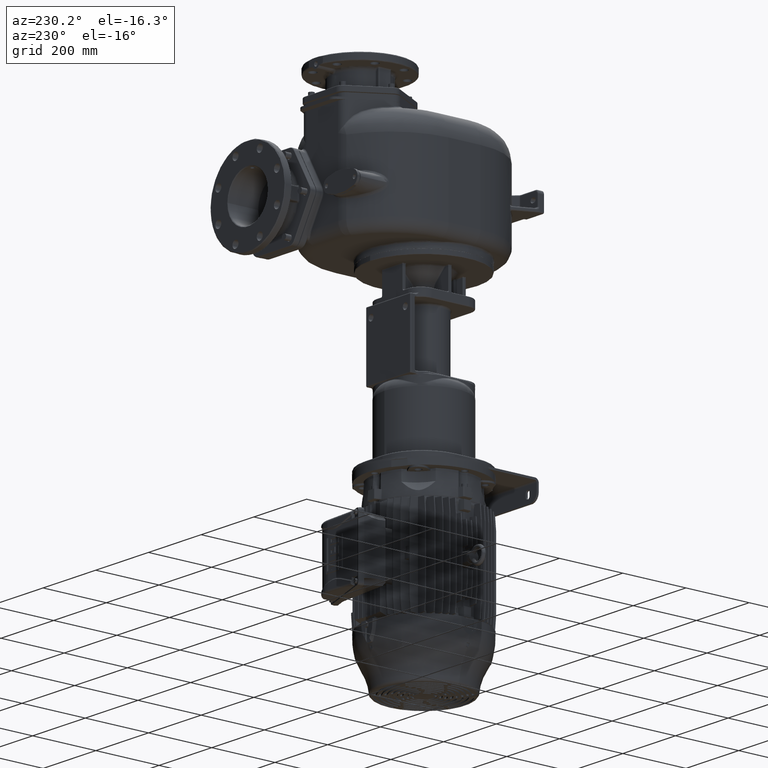
[diagram: clean part render]
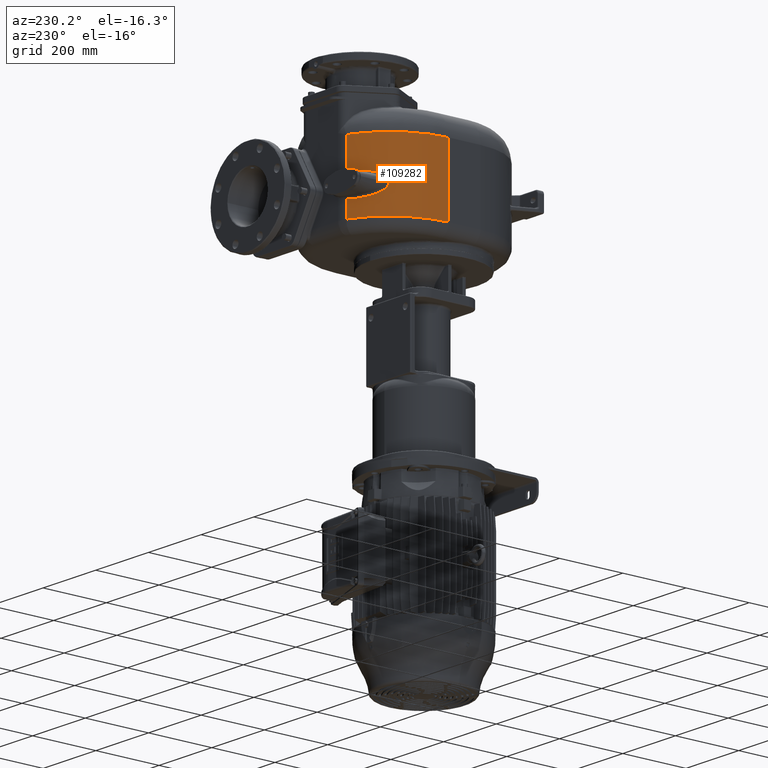
[diagram: same view with one face highlighted and labeled with its STEP entity id]
A machine part, auxiliary view. The second image highlights one B-rep face of the part: STEP entity #109282.
In plain terms, the highlighted cylindrical surface (partial cylindrical patch) has radius 225 mm, axis along (0, 0, -1).
Its self-contained STEP definition (entity closure, byte-faithful):
#42627=CARTESIAN_POINT('',(-5.971814680035E1,5.240322073841E2,
-6.899364550006E1));
#42628=CARTESIAN_POINT('',(-6.042305277968E1,5.237417563989E2,
-6.910556410112E1));
#42629=CARTESIAN_POINT('',(-6.183954877913E1,5.231497205425E2,
-6.931899494135E1));
#42630=CARTESIAN_POINT('',(-6.398491669796E1,5.222269532989E2,
-6.960766591294E1));
#42631=CARTESIAN_POINT('',(-6.614699154209E1,5.212701071367E2,
-6.986408248457E1));
#42632=CARTESIAN_POINT('',(-6.832307667289E1,5.202794230223E2,
-7.008774370844E1));
#42633=CARTESIAN_POINT('',(-7.051023715728E1,5.192553476121E2,
-7.027804041893E1));
#42634=CARTESIAN_POINT('',(-7.270567330587E1,5.181983805242E2,
-7.043459241108E1));
#42635=CARTESIAN_POINT('',(-7.490620386723E1,5.171093260205E2,
-7.055697237340E1));
#42636=CARTESIAN_POINT('',(-7.710843706270E1,5.159892393368E2,
-7.064478985300E1));
#42637=CARTESIAN_POINT('',(-7.930902425367E1,5.148393145998E2,
-7.069787047004E1));
#42638=CARTESIAN_POINT('',(-8.150527877580E1,5.136605491825E2,
-7.071600238156E1));
#42639=CARTESIAN_POINT('',(-8.369463537247E1,5.124540012447E2,
-7.069908209575E1));
#42640=CARTESIAN_POINT('',(-8.587453124720E1,5.112208558357E2,
-7.064709811396E1));
#42641=CARTESIAN_POINT('',(-8.804233530110E1,5.099624714047E2,
-7.055997420122E1));
#42642=CARTESIAN_POINT('',(-9.019551163210E1,5.086802908838E2,
-7.043780439869E1));
#42643=CARTESIAN_POINT('',(-9.233149017194E1,5.073759180824E2,
-7.028069324470E1));
#42644=CARTESIAN_POINT('',(-9.444766474668E1,5.060511278778E2,
-7.008875910473E1));
#42645=CARTESIAN_POINT('',(-9.654156534288E1,5.047077601825E2,
-6.986230621632E1));
#42646=CARTESIAN_POINT('',(-9.861057344234E1,5.033479030852E2,
-6.960158375799E1));
#42647=CARTESIAN_POINT('',(-1.006521327558E2,5.019737672960E2,
-6.930696575349E1));
#42648=CARTESIAN_POINT('',(-1.026637771644E2,5.005876628210E2,
-6.897897682443E1));
#42649=CARTESIAN_POINT('',(-1.046428202351E2,4.991922189115E2,
-6.861810296413E1));
#42650=CARTESIAN_POINT('',(-1.065867522723E2,4.977901167054E2,
-6.822507701739E1));
#42651=CARTESIAN_POINT('',(-1.084931253106E2,4.963841610293E2,
-6.780068405467E1));
#42652=CARTESIAN_POINT('',(-1.103595147950E2,4.949773098291E2,
-6.734572115936E1));
#42653=CARTESIAN_POINT('',(-1.121837491960E2,4.935724922492E2,
-6.686127427007E1));
#42654=CARTESIAN_POINT('',(-1.139632992381E2,4.921730744192E2,
-6.634847145673E1));
#42655=CARTESIAN_POINT('',(-1.156956472746E2,4.907825938478E2,
-6.580868361418E1));
#42656=CARTESIAN_POINT('',(-1.173785084939E2,4.894045695705E2,
-6.524358587556E1));
#42657=CARTESIAN_POINT('',(-1.190093646424E2,4.880428760293E2,
-6.465477188082E1));
#42658=CARTESIAN_POINT('',(-1.205859446079E2,4.867013472062E2,
-6.404428532548E1));
#42659=CARTESIAN_POINT('',(-1.221061676496E2,4.853837990753E2,
-6.341432226742E1));
#42660=CARTESIAN_POINT('',(-1.235681692598E2,4.840939853054E2,
-6.276692589563E1));
#42661=CARTESIAN_POINT('',(-1.249702499172E2,4.828356207921E2,
-6.210483338080E1));
#42662=CARTESIAN_POINT('',(-1.263114056721E2,4.816118727661E2,
-6.143033930703E1));
#42663=CARTESIAN_POINT('',(-1.275912274696E2,4.804253885862E2,
-6.074559106133E1));
#42664=CARTESIAN_POINT('',(-1.288093659545E2,4.792787575232E2,
-6.005339079748E1));
#42665=CARTESIAN_POINT('',(-1.299664942392E2,4.781735719029E2,
-5.935553055208E1));
#42666=CARTESIAN_POINT('',(-1.310635820770E2,4.771110541399E2,
-5.865406899802E1));
#42667=CARTESIAN_POINT('',(-1.321017301892E2,4.760922024885E2,
-5.795121341059E1));
#42668=CARTESIAN_POINT('',(-1.330824051131E2,4.751175442023E2,
-5.724838595907E1));
#42669=CARTESIAN_POINT('',(-1.340071983518E2,4.741873555518E2,
-5.654760558553E1));
#42670=CARTESIAN_POINT('',(-1.348779499763E2,4.733015301015E2,
-5.585039935258E1));
#42671=CARTESIAN_POINT('',(-1.356968454928E2,4.724594654344E2,
-5.515771348887E1));
#42672=CARTESIAN_POINT('',(-1.364661838884E2,4.716602896595E2,
-5.447095534224E1));
#42673=CARTESIAN_POINT('',(-1.371881020480E2,4.709031528510E2,
-5.379090263402E1));
#42674=CARTESIAN_POINT('',(-1.378648265700E2,4.701869739840E2,
-5.311839523041E1));
#42675=CARTESIAN_POINT('',(-1.384986795279E2,4.695104343789E2,
-5.245439745948E1));
#42676=CARTESIAN_POINT('',(-1.390916804045E2,4.688724117766E2,
-5.179923634447E1));
#42677=CARTESIAN_POINT('',(-1.396460629202E2,4.682714375064E2,
-5.115354229718E1));
#42678=CARTESIAN_POINT('',(-1.401639861847E2,4.677060089154E2,
-5.051770831384E1));
#42679=CARTESIAN_POINT('',(-1.406474217E2,4.671747258942E2,-4.989170166709E1));
#42680=CARTESIAN_POINT('',(-1.410985893110E2,4.666758190760E2,
-4.927571458731E1));
#42681=CARTESIAN_POINT('',(-1.415193461348E2,4.662078291700E2,
-4.866963300748E1));
#42682=CARTESIAN_POINT('',(-1.419114348487E2,4.657693483901E2,
-4.807334065294E1));
#42683=CARTESIAN_POINT('',(-1.422767796931E2,4.653586935106E2,
-4.748674570540E1));
#42684=CARTESIAN_POINT('',(-1.426168303991E2,4.649746495403E2,
-4.690956652676E1));
#42685=CARTESIAN_POINT('',(-1.429331399503E2,4.646158310687E2,
-4.634159028743E1));
#42686=CARTESIAN_POINT('',(-1.432272414176E2,4.642808225764E2,
-4.578251038441E1));
#42687=CARTESIAN_POINT('',(-1.435002805427E2,4.639686052751E2,
-4.523202590359E1));
#42688=CARTESIAN_POINT('',(-1.437535910780E2,4.636779072491E2,
-4.468980834029E1));
#42689=CARTESIAN_POINT('',(-1.439883119396E2,4.634076434252E2,
-4.415548094926E1));
#42690=CARTESIAN_POINT('',(-1.442053894545E2,4.631569206244E2,
-4.362873819687E1));
#42691=CARTESIAN_POINT('',(-1.444059020761E2,4.629246660121E2,
-4.310914548883E1));
#42692=CARTESIAN_POINT('',(-1.445906828379E2,4.627100661600E2,
-4.259635218449E1));
#42693=CARTESIAN_POINT('',(-1.447605216654E2,4.625123374146E2,
-4.209000195398E1));
#42694=CARTESIAN_POINT('',(-1.449162322683E2,4.623306495200E2,
-4.158960637235E1));
#42695=CARTESIAN_POINT('',(-1.450584459308E2,4.621643684180E2,
-4.109486933892E1));
#42696=CARTESIAN_POINT('',(-1.451877863896E2,4.620128548024E2,
-4.060535395175E1));
#42697=CARTESIAN_POINT('',(-1.453048336171E2,4.618755076941E2,
-4.012062075694E1));
#42698=CARTESIAN_POINT('',(-1.454100774619E2,4.617518205388E2,
-3.964038738001E1));
#42699=CARTESIAN_POINT('',(-1.455039530685E2,4.616413412300E2,
-3.916417730886E1));
#42700=CARTESIAN_POINT('',(-1.455868941437E2,4.615436104418E2,
-3.869164471561E1));
#42701=CARTESIAN_POINT('',(-1.456592482662E2,4.614582622875E2,
-3.822239359877E1));
#42702=CARTESIAN_POINT('',(-1.457213067432E2,4.613849902623E2,
-3.775595615399E1));
#42703=CARTESIAN_POINT('',(-1.457733832754E2,4.613234549601E2,
-3.729199690824E1));
#42704=CARTESIAN_POINT('',(-1.458156382187E2,4.612734923122E2,
-3.683000727203E1));
#42705=CARTESIAN_POINT('',(-1.458482969796E2,4.612348561669E2,
-3.636987504960E1));
#42706=CARTESIAN_POINT('',(-1.458714807470E2,4.612074183094E2,
-3.591154873357E1));
#42707=CARTESIAN_POINT('',(-1.458852859812E2,4.611910763455E2,
-3.545492152912E1));
#42708=CARTESIAN_POINT('',(-1.458883432064E2,4.611874553363E2,
-3.515147016166E1));
#42709=CARTESIAN_POINT('',(-1.458883424113E2,4.611874572513E2,-3.5E1));
#42711=CARTESIAN_POINT('',(-1.458883424113E2,4.611874572513E2,-3.5E1));
#42712=CARTESIAN_POINT('',(-1.458883432013E2,4.611874553533E2,
-3.484846667092E1));
#42713=CARTESIAN_POINT('',(-1.458852841350E2,4.611910785263E2,
-3.454488757691E1));
#42714=CARTESIAN_POINT('',(-1.458714703936E2,4.612074305664E2,
-3.408806615107E1));
#42715=CARTESIAN_POINT('',(-1.458482723897E2,4.612348852650E2,
-3.362953835144E1));
#42716=CARTESIAN_POINT('',(-1.458155926093E2,4.612735462597E2,
-3.316919549644E1));
#42717=CARTESIAN_POINT('',(-1.457733097846E2,4.613235418348E2,
-3.270698455829E1));
#42718=CARTESIAN_POINT('',(-1.457211977624E2,4.613851189971E2,
-3.224279258191E1));
#42719=CARTESIAN_POINT('',(-1.456590954233E2,4.614584426789E2,
-3.177611040515E1));
#42720=CARTESIAN_POINT('',(-1.455866886383E2,4.615438527439E2,
-3.130660203049E1));
#42721=CARTESIAN_POINT('',(-1.455036851545E2,4.616416567514E2,
-3.083379852235E1));
#42722=CARTESIAN_POINT('',(-1.454097363222E2,4.617522217745E2,
-3.035730287483E1));
#42723=CARTESIAN_POINT('',(-1.453044076560E2,4.618760079628E2,
-2.987676764211E1));
#42724=CARTESIAN_POINT('',(-1.451872628059E2,4.620134687271E2,
-2.939171592131E1));
#42725=CARTESIAN_POINT('',(-1.450578110813E2,4.621651114754E2,
-2.890186523603E1));
#42726=CARTESIAN_POINT('',(-1.449154711153E2,4.623315386596E2,
-2.840677479663E1));
#42727=CARTESIAN_POINT('',(-1.447596174893E2,4.625133913589E2,
-2.790600655872E1));
#42728=CARTESIAN_POINT('',(-1.445896178897E2,4.627113046046E2,
-2.739926393716E1));
#42729=CARTESIAN_POINT('',(-1.444046571939E2,4.629261100295E2,
-2.688605878659E1));
#42730=CARTESIAN_POINT('',(-1.442039438104E2,4.631585929070E2,
-2.636603446591E1));
#42731=CARTESIAN_POINT('',(-1.439866436653E2,4.634095675071E2,
-2.583884074175E1));
#42732=CARTESIAN_POINT('',(-1.437516770865E2,4.636801076497E2,
-2.530404440970E1));
#42733=CARTESIAN_POINT('',(-1.434980968090E2,4.639711071181E2,
-2.476134145821E1));
#42734=CARTESIAN_POINT('',(-1.432247625399E2,4.642836520214E2,
-2.421035540101E1));
#42735=CARTESIAN_POINT('',(-1.429303386808E2,4.646190157581E2,
-2.365075735304E1));
#42736=CARTESIAN_POINT('',(-1.426136772273E2,4.649782189790E2,
-2.308224578792E1));
#42737=CARTESIAN_POINT('',(-1.422732465439E2,4.653626747654E2,
-2.250452137059E1));
#42738=CARTESIAN_POINT('',(-1.419074973767E2,4.657737634737E2,
-2.191737980036E1));
#42739=CARTESIAN_POINT('',(-1.415149811314E2,4.662126979643E2,
-2.132054357905E1));
#42740=CARTESIAN_POINT('',(-1.410937655561E2,4.666811694179E2,
-2.071390936449E1));
#42741=CARTESIAN_POINT('',(-1.406420944946E2,4.671805992862E2,
-2.009734399904E1));
#42742=CARTESIAN_POINT('',(-1.401581199981E2,4.677124351866E2,
-1.947075591153E1));
#42743=CARTESIAN_POINT('',(-1.396396647955E2,4.682783985366E2,
-1.883439613110E1));
#42744=CARTESIAN_POINT('',(-1.390848147611E2,4.688798269907E2,
-1.818829018121E1));
#42745=CARTESIAN_POINT('',(-1.384913690147E2,4.695182690362E2,
-1.753276840943E1));
#42746=CARTESIAN_POINT('',(-1.378570076879E2,4.701952848080E2,
-1.686836778425E1));
#42747=CARTESIAN_POINT('',(-1.371796195991E2,4.709120908620E2,
-1.619535513712E1));
#42748=CARTESIAN_POINT('',(-1.364567279703E2,4.716701622082E2,
-1.551455106206E1));
#42749=CARTESIAN_POINT('',(-1.356859307828E2,4.724707506566E2,
-1.482664416608E1));
#42750=CARTESIAN_POINT('',(-1.348649669989E2,4.733148155574E2,
-1.413234596831E1));
#42751=CARTESIAN_POINT('',(-1.339915730277E2,4.742031698884E2,
-1.343316599943E1));
#42752=CARTESIAN_POINT('',(-1.330635950802E2,4.751363612007E2,
-1.273010093438E1));
#42753=CARTESIAN_POINT('',(-1.320791994376E2,4.761144659440E2,
-1.202471162034E1));
#42754=CARTESIAN_POINT('',(-1.310367778250E2,4.771371997230E2,
-1.131903626167E1));
#42755=CARTESIAN_POINT('',(-1.299348243232E2,4.782040453884E2,
-1.061448919726E1));
#42756=CARTESIAN_POINT('',(-1.287725796846E2,4.793136501682E2,
-9.913538536598E0));
#42757=CARTESIAN_POINT('',(-1.275495060569E2,4.804643718410E2,
-9.218487652167E0));
#42758=CARTESIAN_POINT('',(-1.262653355302E2,4.816542491904E2,
-8.531299824005E0));
#42759=CARTESIAN_POINT('',(-1.249204828444E2,4.828806564472E2,
-7.854774933546E0));
#42760=CARTESIAN_POINT('',(-1.235154926988E2,4.841408523010E2,
-7.191108087707E0));
#42761=CARTESIAN_POINT('',(-1.220513003924E2,4.854317662169E2,
-6.542529322059E0));
#42762=CARTESIAN_POINT('',(-1.205292527719E2,4.867500206935E2,
-5.911556771379E0));
#42763=CARTESIAN_POINT('',(-1.189508604294E2,4.880921778536E2,
-5.300085736539E0));
#42764=CARTESIAN_POINT('',(-1.173180318113E2,4.894545651664E2,
-4.710257104838E0));
#42765=CARTESIAN_POINT('',(-1.156329466106E2,4.908334167468E2,
-4.144084770510E0));
#42766=CARTESIAN_POINT('',(-1.138980012442E2,4.922249437685E2,
-3.603139385266E0));
#42767=CARTESIAN_POINT('',(-1.121155831920E2,4.936255300312E2,
-3.089137184666E0));
#42768=CARTESIAN_POINT('',(-1.102883098017E2,4.950315509467E2,
-2.603465096541E0));
#42769=CARTESIAN_POINT('',(-1.084188628699E2,4.964395198047E2,
-2.147287120181E0));
#42770=CARTESIAN_POINT('',(-1.065097081088E2,4.978462934807E2,
-1.721774331886E0));
#42771=CARTESIAN_POINT('',(-1.045635987766E2,4.992486960849E2,
-1.327782048032E0));
#42772=CARTESIAN_POINT('',(-1.025830974545E2,5.006438757843E2,
-9.660985066812E-1));
#42773=CARTESIAN_POINT('',(-1.005706761515E2,5.020292139991E2,
-6.374301454907E-1));
#42774=CARTESIAN_POINT('',(-9.852901479767E1,5.034021201943E2,
-3.422499224981E-1));
#42775=CARTESIAN_POINT('',(-9.646055145447E1,5.047603360971E2,
-8.106798418868E-2));
#42776=CARTESIAN_POINT('',(-9.436781978787E1,5.061016967714E2,
1.457533465439E-1));
#42777=CARTESIAN_POINT('',(-9.225339867738E1,5.074241684748E2,
3.379739515674E-1));
#42778=CARTESIAN_POINT('',(-9.011968236773E1,5.087259841199E2,
4.953092707724E-1));
#42779=CARTESIAN_POINT('',(-8.796918808337E1,5.100054437941E2,
6.176533389246E-1));
#42780=CARTESIAN_POINT('',(-8.580446231473E1,5.112609748808E2,
7.049046847280E-1));
#42781=CARTESIAN_POINT('',(-8.362808396910E1,5.124911267562E2,
7.569733798525E-1));
#42782=CARTESIAN_POINT('',(-8.144271433039E1,5.136945423912E2,
7.739423539205E-1));
#42783=CARTESIAN_POINT('',(-7.925092823782E1,5.148700486623E2,
7.558282139531E-1));
#42784=CARTESIAN_POINT('',(-7.705529852294E1,5.160166014739E2,
7.027416364277E-1));
#42785=CARTESIAN_POINT('',(-7.485851659719E1,5.171332188213E2,
6.149016911748E-1));
#42786=CARTESIAN_POINT('',(-7.266387991439E1,5.182187488238E2,
4.924900557502E-1));
#42787=CARTESIAN_POINT('',(-7.047472911526E1,5.192721746130E2,
3.359021422461E-1));
#42788=CARTESIAN_POINT('',(-6.829419185622E1,5.202927278534E2,
1.455683659590E-1));
#42789=CARTESIAN_POINT('',(-6.612501981451E1,5.212799387801E2,
-7.812590860265E-2));
#42790=CARTESIAN_POINT('',(-6.397009550982E1,5.222333894222E2,
-3.345700459963E-1));
#42791=CARTESIAN_POINT('',(-6.183206870109E1,5.231528621268E2,
-6.232596525562E-1));
#42792=CARTESIAN_POINT('',(-6.042054433077E1,5.237427899921E2,
-8.366972374370E-1));
#42793=CARTESIAN_POINT('',(-5.971814680035E1,5.240322073841E2,
-9.486162932953E-1));
#42795=CARTESIAN_POINT('',(2.6E1,3.16E2,9.4E1));
#42796=DIRECTION('',(0.E0,0.E0,1.E0));
#42797=DIRECTION('',(-3.809695413349E-1,9.245875883739E-1,0.E0));
#42798=AXIS2_PLACEMENT_3D('',#42795,#42796,#42797);
#42800=DIRECTION('',(0.E0,7.078865012339E-13,1.E0));
#42801=VECTOR('',#42800,2.14E2);
#42802=CARTESIAN_POINT('',(-1.99E2,3.159999999998E2,-1.2E2));
#42803=LINE('',#42802,#42801);
#42804=CARTESIAN_POINT('',(2.6E1,3.16E2,-1.2E2));
#42805=DIRECTION('',(0.E0,0.E0,-1.E0));
#42806=DIRECTION('',(-1.E0,0.E0,0.E0));
#42807=AXIS2_PLACEMENT_3D('',#42804,#42805,#42806);
#42844=DIRECTION('',(8.084411742689E-12,3.327711819095E-12,1.E0));
#42845=VECTOR('',#42844,5.100635449994E1);
#42846=CARTESIAN_POINT('',(-5.971814680076E1,5.240322073840E2,-1.2E2));
#42847=LINE('',#42846,#42845);
#49678=DIRECTION('',(0.E0,0.E0,1.E0));
#49679=VECTOR('',#49678,9.494861629330E1);
#49680=CARTESIAN_POINT('',(-5.971814680035E1,5.240322073841E2,
-9.486162932953E-1));
#49681=LINE('',#49680,#49679);
#54143=CARTESIAN_POINT('',(-1.99E2,3.159999999998E2,-1.2E2));
#54144=CARTESIAN_POINT('',(-1.99E2,3.159999999999E2,9.4E1));
#54145=VERTEX_POINT('',#54143);
#54146=VERTEX_POINT('',#54144);
#54185=VERTEX_POINT('',#42627);
#54186=VERTEX_POINT('',#42709);
#54189=VERTEX_POINT('',#42793);
#54241=CARTESIAN_POINT('',(-5.971814680035E1,5.240322073841E2,-1.2E2));
#54242=VERTEX_POINT('',#54241);
#54304=CARTESIAN_POINT('',(-5.971814680035E1,5.240322073841E2,9.4E1));
#54305=VERTEX_POINT('',#54304);
#109262=CARTESIAN_POINT('',(2.6E1,3.16E2,-1.56E2));
#109263=DIRECTION('',(0.E0,0.E0,-1.E0));
#109264=DIRECTION('',(-1.E0,0.E0,0.E0));
#109265=AXIS2_PLACEMENT_3D('',#109262,#109263,#109264);
#109266=CYLINDRICAL_SURFACE('',#109265,2.25E2);
#109268=ORIENTED_EDGE('',*,*,#109267,.T.);
#109270=ORIENTED_EDGE('',*,*,#109269,.T.);
#109272=ORIENTED_EDGE('',*,*,#109271,.T.);
#109273=ORIENTED_EDGE('',*,*,#109247,.T.);
#109275=ORIENTED_EDGE('',*,*,#109274,.F.);
#109277=ORIENTED_EDGE('',*,*,#109276,.T.);
#109279=ORIENTED_EDGE('',*,*,#109278,.T.);
#109280=EDGE_LOOP('',(#109268,#109270,#109272,#109273,#109275,#109277,#109279));
#109281=FACE_OUTER_BOUND('',#109280,.F.);
#109282=ADVANCED_FACE('',(#109281),#109266,.T.);
#42710=B_SPLINE_CURVE_WITH_KNOTS('',3,(#42627,#42628,#42629,#42630,#42631,
#42632,#42633,#42634,#42635,#42636,#42637,#42638,#42639,#42640,#42641,#42642,
#42643,#42644,#42645,#42646,#42647,#42648,#42649,#42650,#42651,#42652,#42653,
#42654,#42655,#42656,#42657,#42658,#42659,#42660,#42661,#42662,#42663,#42664,
#42665,#42666,#42667,#42668,#42669,#42670,#42671,#42672,#42673,#42674,#42675,
#42676,#42677,#42678,#42679,#42680,#42681,#42682,#42683,#42684,#42685,#42686,
#42687,#42688,#42689,#42690,#42691,#42692,#42693,#42694,#42695,#42696,#42697,
#42698,#42699,#42700,#42701,#42702,#42703,#42704,#42705,#42706,#42707,#42708,
#42709),.UNSPECIFIED.,.F.,.F.,(4,1,1,1,1,1,1,1,1,1,1,1,1,1,1,1,1,1,1,1,1,1,1,1,
1,1,1,1,1,1,1,1,1,1,1,1,1,1,1,1,1,1,1,1,1,1,1,1,1,1,1,1,1,1,1,1,1,1,1,1,1,1,1,1,
1,1,1,1,1,1,1,1,1,1,1,1,1,1,1,1,4),(0.E0,1.25E-2,2.5E-2,3.75E-2,5.E-2,6.25E-2,
7.5E-2,8.75E-2,1.E-1,1.125E-1,1.25E-1,1.375E-1,1.5E-1,1.625E-1,1.75E-1,1.875E-1,
2.E-1,2.125E-1,2.25E-1,2.375E-1,2.5E-1,2.625E-1,2.75E-1,2.875E-1,3.E-1,3.125E-1,
3.25E-1,3.375E-1,3.5E-1,3.625E-1,3.75E-1,3.875E-1,4.E-1,4.125E-1,4.25E-1,
4.375E-1,4.5E-1,4.625E-1,4.75E-1,4.875E-1,5.E-1,5.125E-1,5.25E-1,5.375E-1,
5.5E-1,5.625E-1,5.75E-1,5.875E-1,6.E-1,6.125E-1,6.25E-1,6.375E-1,6.5E-1,
6.625E-1,6.75E-1,6.875E-1,7.E-1,7.125E-1,7.25E-1,7.375E-1,7.5E-1,7.625E-1,
7.75E-1,7.875E-1,8.E-1,8.125E-1,8.25E-1,8.375E-1,8.5E-1,8.625E-1,8.75E-1,
8.875E-1,9.E-1,9.125E-1,9.25E-1,9.375E-1,9.5E-1,9.625E-1,9.75E-1,9.875E-1,1.E0),
.UNSPECIFIED.);
#42794=B_SPLINE_CURVE_WITH_KNOTS('',3,(#42711,#42712,#42713,#42714,#42715,
#42716,#42717,#42718,#42719,#42720,#42721,#42722,#42723,#42724,#42725,#42726,
#42727,#42728,#42729,#42730,#42731,#42732,#42733,#42734,#42735,#42736,#42737,
#42738,#42739,#42740,#42741,#42742,#42743,#42744,#42745,#42746,#42747,#42748,
#42749,#42750,#42751,#42752,#42753,#42754,#42755,#42756,#42757,#42758,#42759,
#42760,#42761,#42762,#42763,#42764,#42765,#42766,#42767,#42768,#42769,#42770,
#42771,#42772,#42773,#42774,#42775,#42776,#42777,#42778,#42779,#42780,#42781,
#42782,#42783,#42784,#42785,#42786,#42787,#42788,#42789,#42790,#42791,#42792,
#42793),.UNSPECIFIED.,.F.,.F.,(4,1,1,1,1,1,1,1,1,1,1,1,1,1,1,1,1,1,1,1,1,1,1,1,
1,1,1,1,1,1,1,1,1,1,1,1,1,1,1,1,1,1,1,1,1,1,1,1,1,1,1,1,1,1,1,1,1,1,1,1,1,1,1,1,
1,1,1,1,1,1,1,1,1,1,1,1,1,1,1,1,4),(0.E0,1.25E-2,2.5E-2,3.75E-2,5.E-2,6.25E-2,
7.5E-2,8.75E-2,1.E-1,1.125E-1,1.25E-1,1.375E-1,1.5E-1,1.625E-1,1.75E-1,1.875E-1,
2.E-1,2.125E-1,2.25E-1,2.375E-1,2.5E-1,2.625E-1,2.75E-1,2.875E-1,3.E-1,3.125E-1,
3.25E-1,3.375E-1,3.5E-1,3.625E-1,3.75E-1,3.875E-1,4.E-1,4.125E-1,4.25E-1,
4.375E-1,4.5E-1,4.625E-1,4.75E-1,4.875E-1,5.E-1,5.125E-1,5.25E-1,5.375E-1,
5.5E-1,5.625E-1,5.75E-1,5.875E-1,6.E-1,6.125E-1,6.25E-1,6.375E-1,6.5E-1,
6.625E-1,6.75E-1,6.875E-1,7.E-1,7.125E-1,7.25E-1,7.375E-1,7.5E-1,7.625E-1,
7.75E-1,7.875E-1,8.E-1,8.125E-1,8.25E-1,8.375E-1,8.5E-1,8.625E-1,8.75E-1,
8.875E-1,9.E-1,9.125E-1,9.25E-1,9.375E-1,9.5E-1,9.625E-1,9.75E-1,9.875E-1,1.E0),
.UNSPECIFIED.);
#42799=CIRCLE('',#42798,2.25E2);
#42808=CIRCLE('',#42807,2.25E2);
#109247=EDGE_CURVE('',#54305,#54146,#42799,.T.);
#109267=EDGE_CURVE('',#54185,#54186,#42710,.T.);
#109269=EDGE_CURVE('',#54186,#54189,#42794,.T.);
#109271=EDGE_CURVE('',#54189,#54305,#49681,.T.);
#109274=EDGE_CURVE('',#54145,#54146,#42803,.T.);
#109276=EDGE_CURVE('',#54145,#54242,#42808,.T.);
#109278=EDGE_CURVE('',#54242,#54185,#42847,.T.);